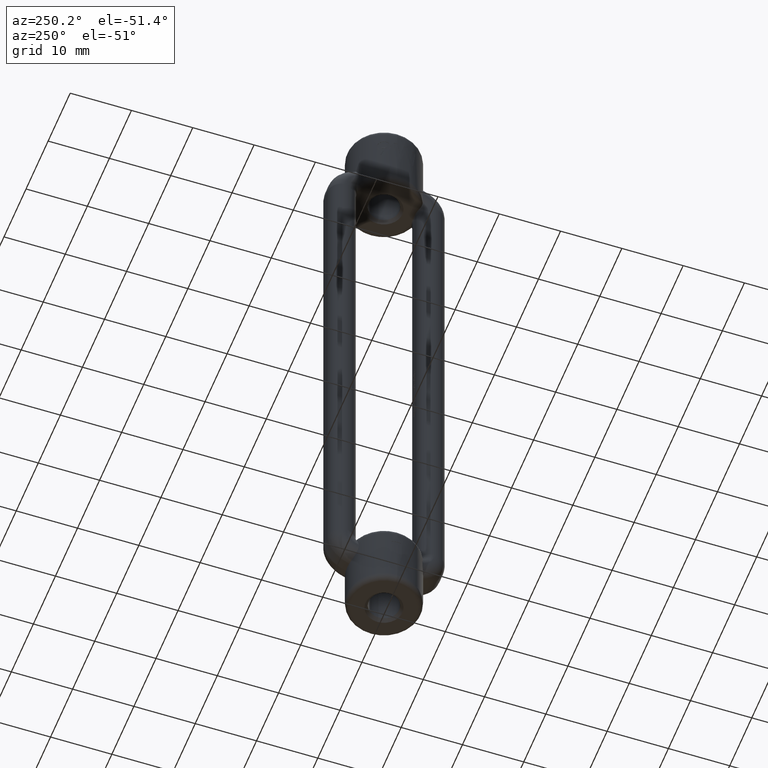
[diagram: clean part render]
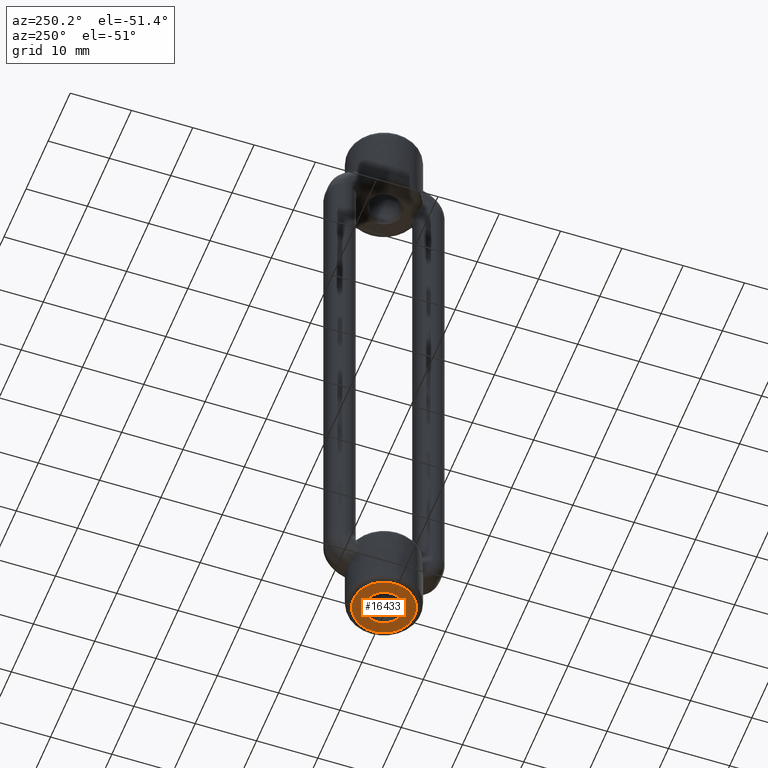
[diagram: same view with one face highlighted and labeled with its STEP entity id]
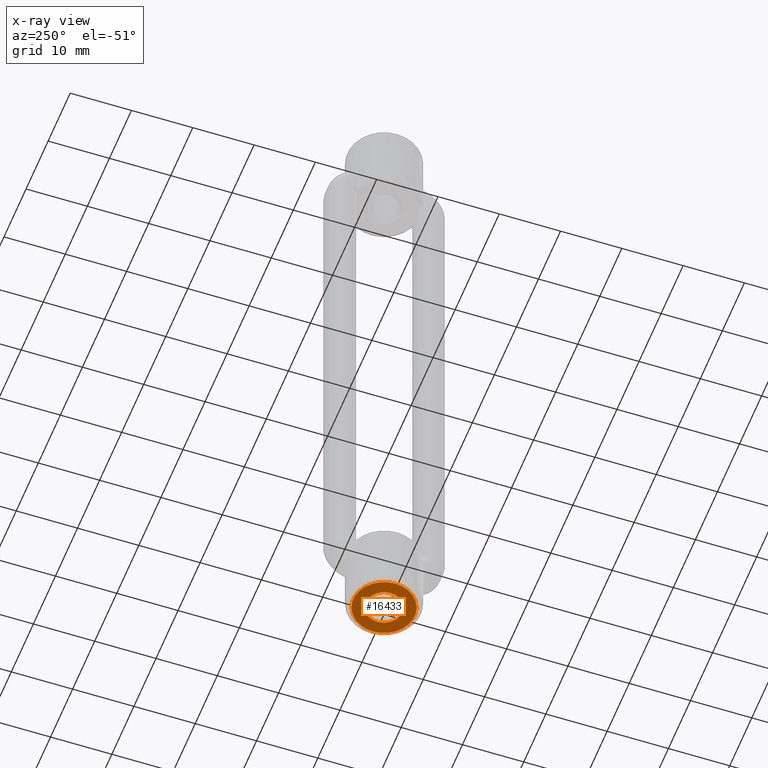
[diagram: x-ray of the same camera — body ghosted, the highlighted face saturated]
A machine part, auxiliary view. The second image highlights one B-rep face of the part: STEP entity #16433.
The next image is the same camera in x-ray: the body ghosted, the highlighted face saturated — about 0% of this face is hidden behind the body in this view.
In plain terms, the highlighted planar face has unit normal (0, -0, 1).
Its self-contained STEP definition (entity closure, byte-faithful):
#303 = CIRCLE ( 'NONE', #11662, 3.000000000000016400 ) ;
#892 = DIRECTION ( 'NONE',  ( 1.000000000000000000, 0.0000000000000000000, 0.0000000000000000000 ) ) ;
#1542 = AXIS2_PLACEMENT_3D ( 'NONE', #16136, #8372, #12161 ) ;
#2142 = DIRECTION ( 'NONE',  ( 1.000000000000000000, 0.0000000000000000000, 0.0000000000000000000 ) ) ;
#2256 = EDGE_CURVE ( 'NONE', #6304, #8615, #15189, .T. ) ;
#2380 = AXIS2_PLACEMENT_3D ( 'NONE', #5172, #9080, #12990 ) ;
#2656 = ORIENTED_EDGE ( 'NONE', *, *, #10374, .T. ) ;
#4038 = EDGE_LOOP ( 'NONE', ( #13150, #2656 ) ) ;
#4701 = DIRECTION ( 'NONE',  ( -0.0000000000000000000, -0.0000000000000000000, 1.000000000000000000 ) ) ;
#4825 = DIRECTION ( 'NONE',  ( 0.0000000000000000000, 0.0000000000000000000, -1.000000000000000000 ) ) ;
#5172 = CARTESIAN_POINT ( 'NONE',  ( 0.0000000000000000000, 8.766172331216892400E-017, -54.99999999999999300 ) ) ;
#5187 = CIRCLE ( 'NONE', #7579, 3.000000000000016400 ) ;
#5332 = AXIS2_PLACEMENT_3D ( 'NONE', #16666, #4825, #892 ) ;
#6103 = FACE_BOUND ( 'NONE', #4038, .T. ) ;
#6304 = VERTEX_POINT ( 'NONE', #14764 ) ;
#6897 = CIRCLE ( 'NONE', #2380, 5.000000000000010700 ) ;
#7230 = ORIENTED_EDGE ( 'NONE', *, *, #8839, .T. ) ;
#7526 = FACE_OUTER_BOUND ( 'NONE', #9461, .T. ) ;
#7578 = VERTEX_POINT ( 'NONE', #11042 ) ;
#7579 = AXIS2_PLACEMENT_3D ( 'NONE', #11178, #4701, #2142 ) ;
#7969 = CARTESIAN_POINT ( 'NONE',  ( 0.0000000000000000000, 0.0000000000000000000, -54.99999999999999300 ) ) ;
#8372 = DIRECTION ( 'NONE',  ( 0.0000000000000000000, -0.0000000000000000000, 1.000000000000000000 ) ) ;
#8615 = VERTEX_POINT ( 'NONE', #9218 ) ;
#8839 = EDGE_CURVE ( 'NONE', #8615, #6304, #6897, .T. ) ;
#9080 = DIRECTION ( 'NONE',  ( 0.0000000000000000000, 0.0000000000000000000, -1.000000000000000000 ) ) ;
#9218 = CARTESIAN_POINT ( 'NONE',  ( -5.000000000000010700, 7.612174628432143800E-016, -54.99999999999999300 ) ) ;
#9461 = EDGE_LOOP ( 'NONE', ( #10356, #7230 ) ) ;
#9633 = PLANE ( 'NONE',  #1542 ) ;
#10356 = ORIENTED_EDGE ( 'NONE', *, *, #2256, .T. ) ;
#10374 = EDGE_CURVE ( 'NONE', #7578, #10792, #303, .T. ) ;
#10792 = VERTEX_POINT ( 'NONE', #15447 ) ;
#11042 = CARTESIAN_POINT ( 'NONE',  ( 3.000000000000016400, 3.673940397442079600E-016, -54.99999999999999300 ) ) ;
#11178 = CARTESIAN_POINT ( 'NONE',  ( 0.0000000000000000000, 0.0000000000000000000, -54.99999999999999300 ) ) ;
#11662 = AXIS2_PLACEMENT_3D ( 'NONE', #7969, #11778, #15872 ) ;
#11778 = DIRECTION ( 'NONE',  ( -0.0000000000000000000, -0.0000000000000000000, 1.000000000000000000 ) ) ;
#12161 = DIRECTION ( 'NONE',  ( 1.000000000000000000, 0.0000000000000000000, 0.0000000000000000000 ) ) ;
#12990 = DIRECTION ( 'NONE',  ( 1.000000000000000000, 0.0000000000000000000, 0.0000000000000000000 ) ) ;
#13150 = ORIENTED_EDGE ( 'NONE', *, *, #14772, .T. ) ;
#14764 = CARTESIAN_POINT ( 'NONE',  ( 5.000000000000010700, 8.766172331216892400E-017, -54.99999999999999300 ) ) ;
#14772 = EDGE_CURVE ( 'NONE', #10792, #7578, #5187, .T. ) ;
#15189 = CIRCLE ( 'NONE', #5332, 5.000000000000010700 ) ;
#15447 = CARTESIAN_POINT ( 'NONE',  ( -3.000000000000016400, 0.0000000000000000000, -54.99999999999999300 ) ) ;
#15872 = DIRECTION ( 'NONE',  ( 1.000000000000000000, 0.0000000000000000000, 0.0000000000000000000 ) ) ;
#16136 = CARTESIAN_POINT ( 'NONE',  ( 0.0000000000000000000, 6.000000000000010700, -54.99999999999999300 ) ) ;
#16433 = ADVANCED_FACE ( 'NONE', ( #6103, #7526 ), #9633, .F. ) ;
#16666 = CARTESIAN_POINT ( 'NONE',  ( 0.0000000000000000000, 8.766172331216892400E-017, -54.99999999999999300 ) ) ;